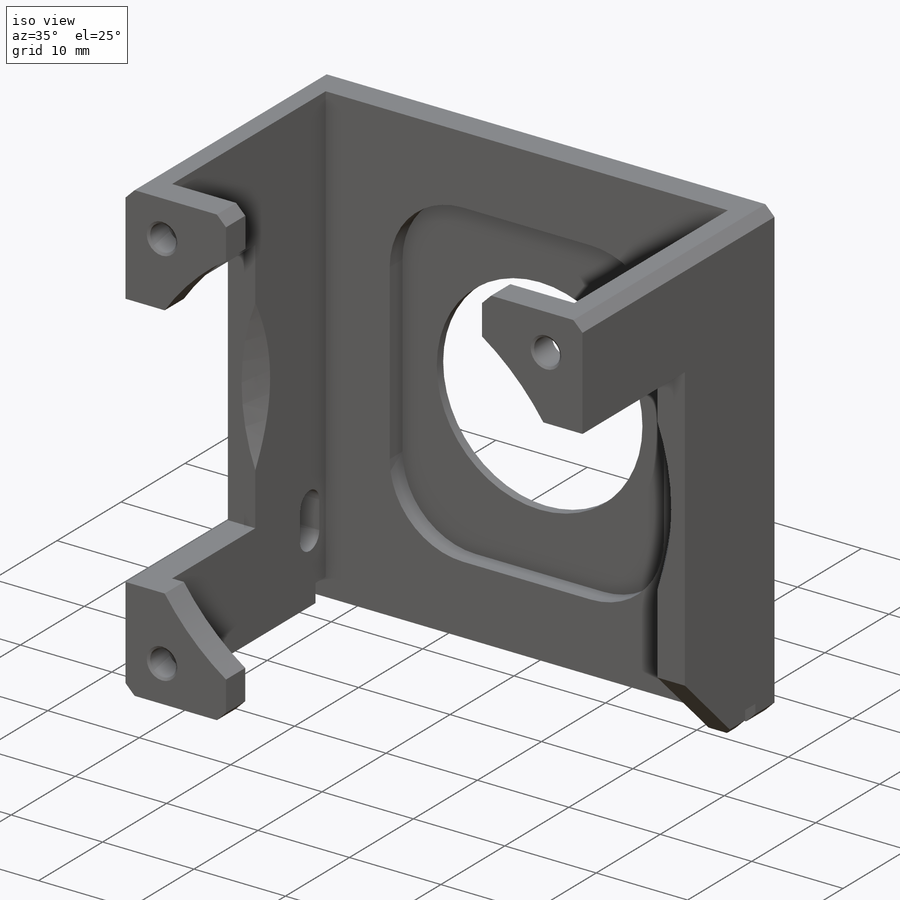
[diagram: iso view]
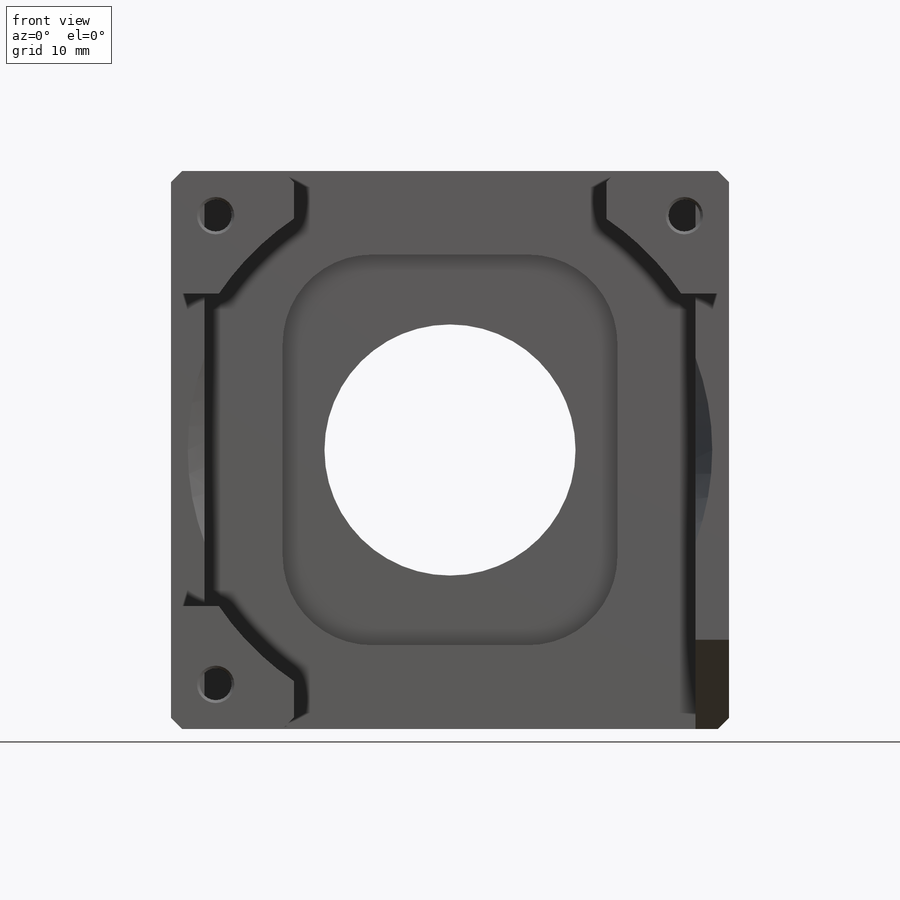
[diagram: front view]
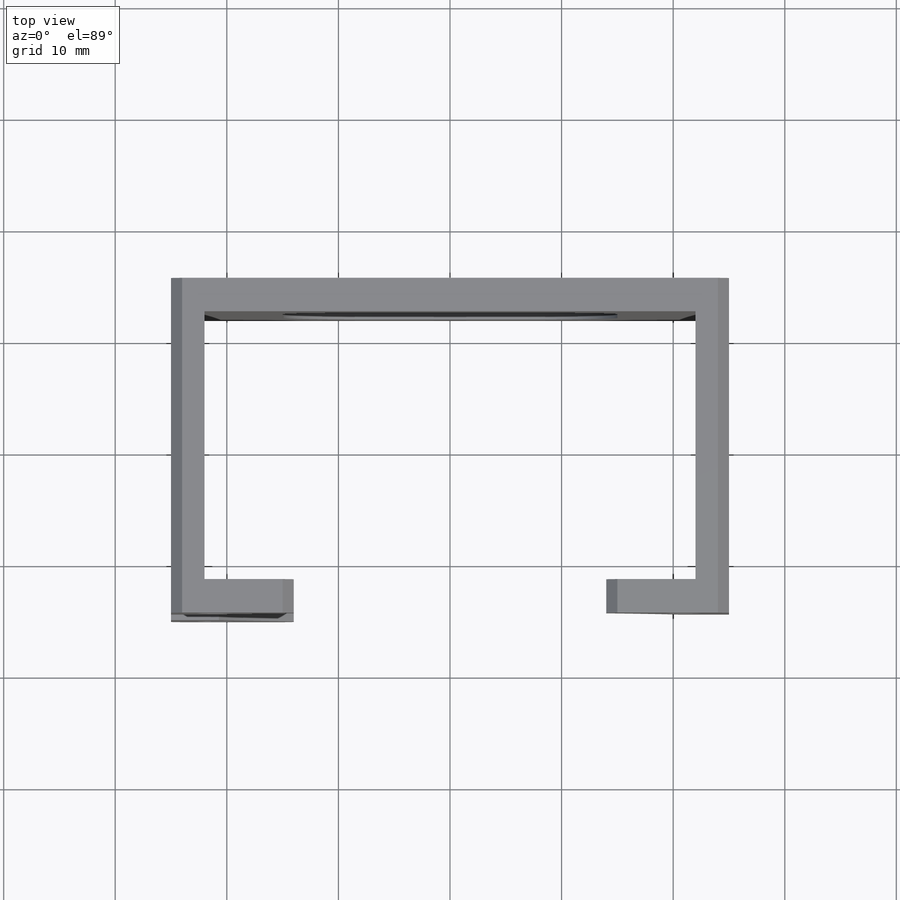
[diagram: top view]
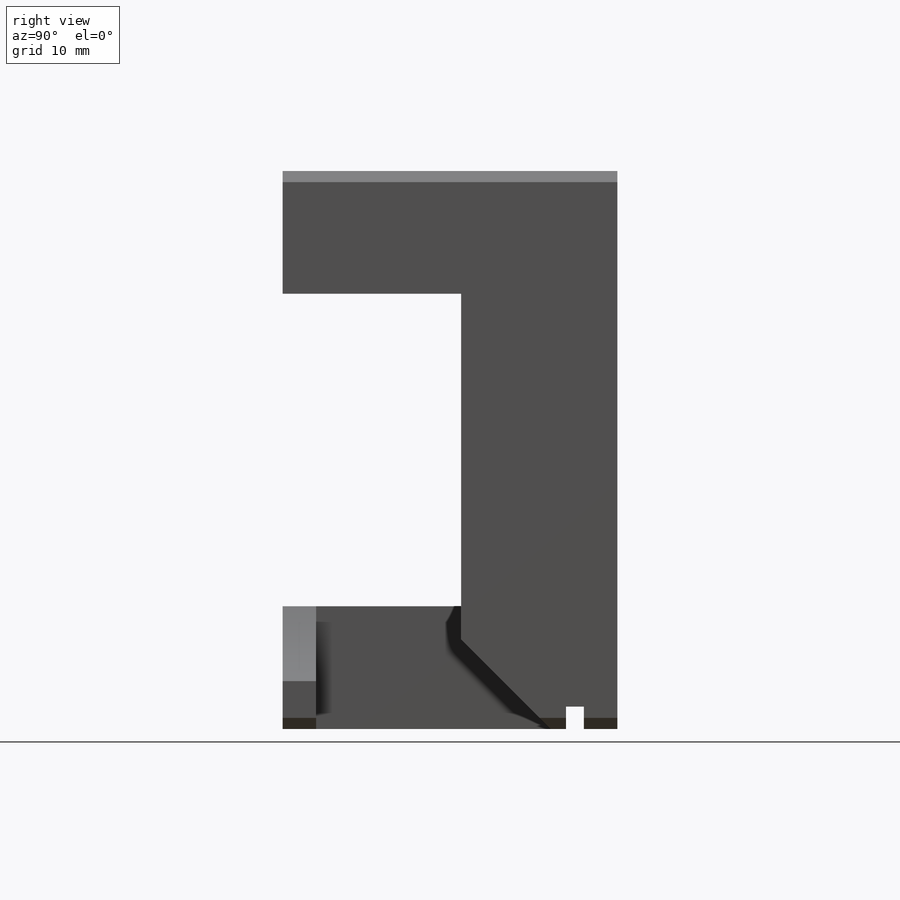
[diagram: right view]
SOLIDWORKS PART (.sldprt)
format: sldprt  version: not decoded by parser v0  size: 407,040 bytes
history: native  units: mm
features: sketch x9, cut_extrude x5, plane x4, chamfer x2, material x1, extrude x1, cut_revolve x1, hole x1 (+13 scaffold rows collapsed)
feature tree (37):
  scaffold x13  (default folders/planes/origin — collapsed)
  material  "6063-T1"
  plane  "Спереди"
  plane  "Сверху"
  plane  "Справа"
  sketch  "Эскиз1"  dims[D1=50.0mm D2=30.0mm D3=3.0mm]
  extrude  "Бобышка-Вытянуть1"  Depth=50mm
  sketch  "Эскиз2"  dims[c1.D1=50.0mm c1.D2=25.0mm c1.D5=25.0mm c2.D1=25.0mm c2.D2=25.0mm c2.D3=28.0mm c2.D4=28.0mm]
  cut_extrude  "Вырез-Вытянуть1"  Depth=14mm
  sketch  "Эскиз3"  dims[D1=22.5mm]
  cut_extrude  "Вырез-Вытянуть2"  [1 undecoded]
  plane  "Плоскость1"
  sketch  "Эскиз6"  dims[c1.D1=~3.033308mm c2.D1=33.0deg c2.D2=1.5mm]
  cut_revolve  "Вырез-Повернуть1"  Angle=360deg
  hole  "Отверстие #4-40"  [1 undecoded]
  sketch  "Эскиз8"  dims[c1.D4=22.5mm c1.D1=42.0mm c1.D2=42.0mm c2.D1=42.0mm c2.D2=42.0mm c2.D3=21.0mm c2.D4=21.0mm]
  sketch  "Эскиз7"  dims[hole-wizard template sketch: 54 standard entries collapsed; hole parameters kept: c17.Диаметр резьбы=2.8448mm c17.Глубина проходного сверла=3.0mm c17.Диаметр передней зенковки=3.3528mm c17.D4=~3.666174mm c17.Угол передней зенковки=110.0deg]
  sketch  "Эскиз10"  dims[D1=1.6mm D2=2.0mm D3=3.0mm]
  cut_extrude  "Вырез-Вытянуть4"  [1 undecoded]
  sketch  "Эскиз9"  dims[D1=30.0mm D2=35.0mm D3=30.0mm]
  cut_extrude  "Вырез-Вытянуть3"  Depth=2mm
  chamfer  "Фаска1"  Distance=8mm Angle=45deg
  chamfer  "Фаска2"  Distance=1mm Angle=45deg
  sketch  "Эскиз11"  dims[D1=3.0mm D2=6.0mm D3=5.5mm D4=8.5mm]
  cut_extrude  "Вырез-Вытянуть5"  [1 undecoded]
decode coverage: 15 of 19 modeling features carry decoded parameters
note: ~ marks probable driven/reference dimensions
note: 4 parameter values undecoded
summary: no parameter record found for 4 features
note: suppression state not decoded; provenance and decode notes live in map.json
